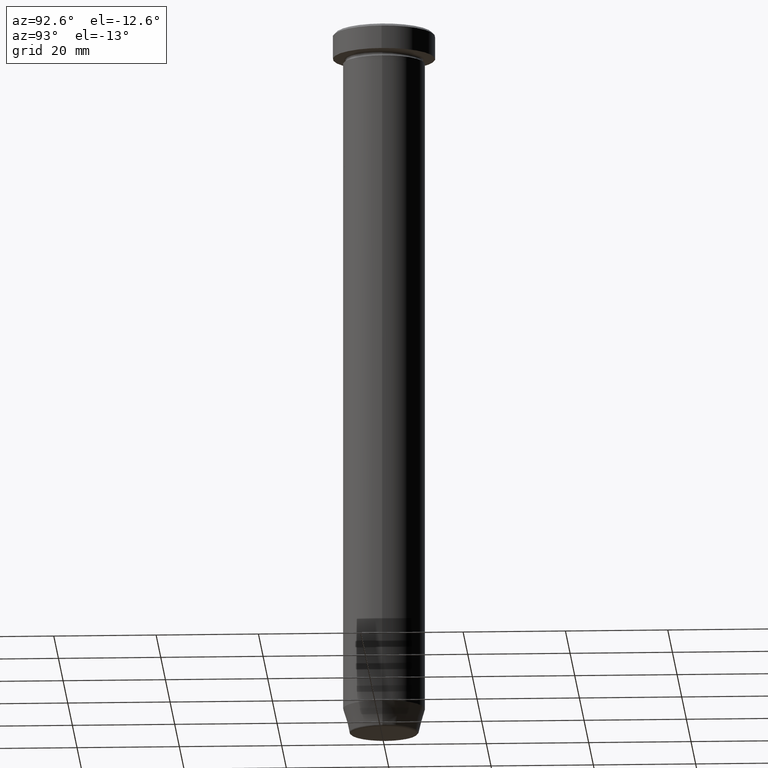
[diagram: clean part render]
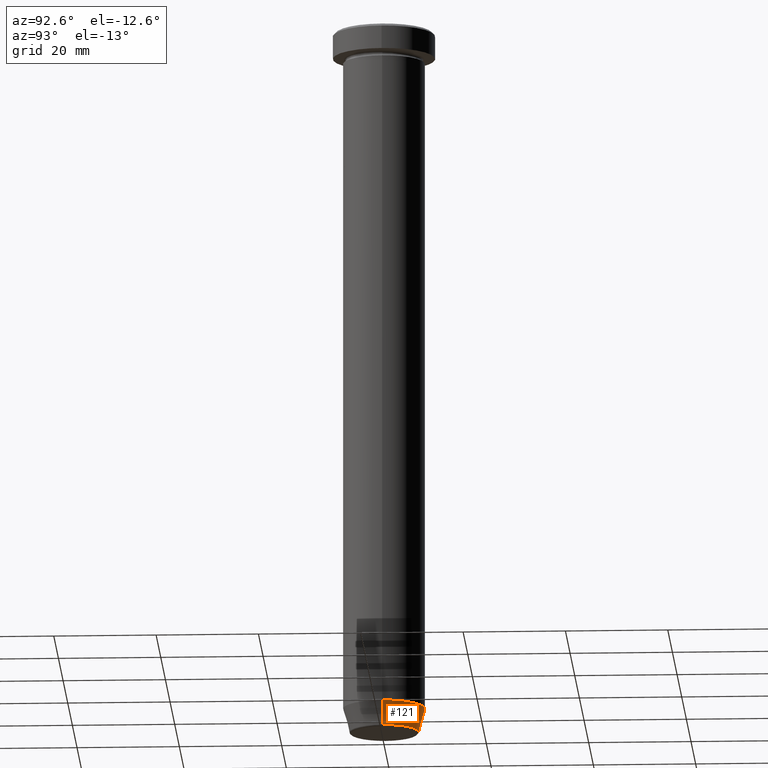
[diagram: same view with one face highlighted and labeled with its STEP entity id]
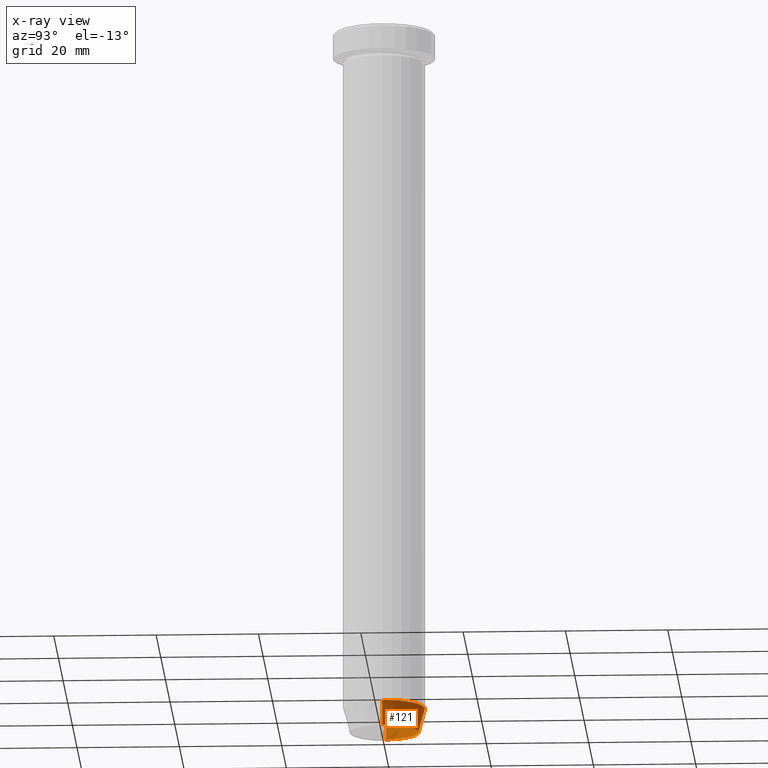
[diagram: x-ray of the same camera — body ghosted, the highlighted face saturated]
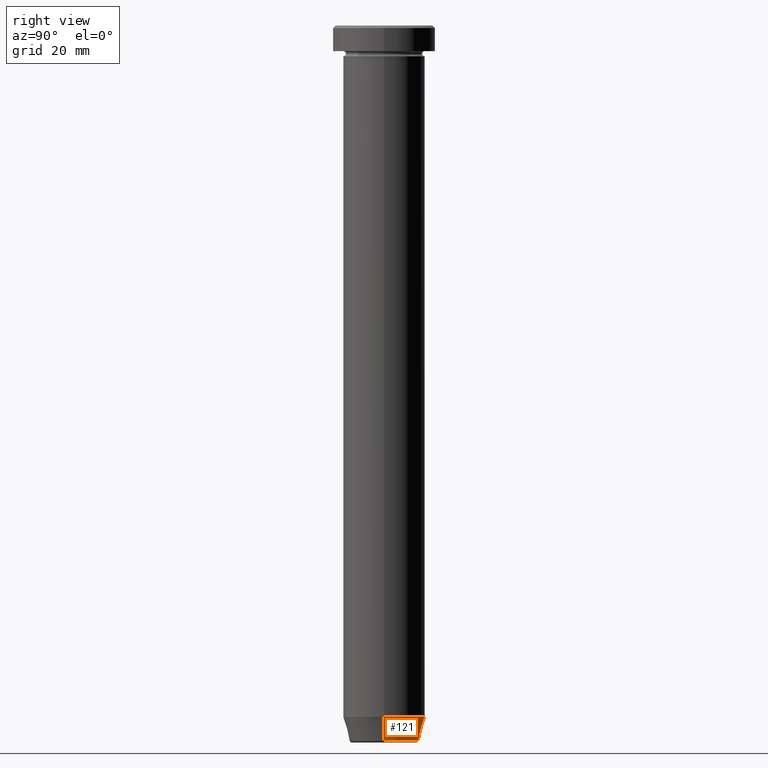
[diagram: same view with one face highlighted and labeled with its STEP entity id]
A machine part, auxiliary view. The second image highlights one B-rep face of the part: STEP entity #121.
The next image is the same camera in x-ray: the body ghosted, the highlighted face saturated — about 0% of this face is hidden behind the body in this view.
A second angle (right view) of the same face is appended — the face is thin or edge-on in the first view.
In plain terms, the highlighted conical surface has half-angle 15 deg.
Its self-contained STEP definition (entity closure, byte-faithful):
#9 = CIRCLE ( 'NONE', #142, 6.759553456999436882 ) ;
#14 = VERTEX_POINT ( 'NONE', #264 ) ;
#22 = DIRECTION ( 'NONE',  ( -0.000000000000000000, -0.000000000000000000, 1.000000000000000000 ) ) ;
#46 = CARTESIAN_POINT ( 'NONE',  ( 8.000000000000000000, 0.000000000000000000, -135.0000000000000000 ) ) ;
#55 = DIRECTION ( 'NONE',  ( -0.000000000000000000, -0.000000000000000000, 1.000000000000000000 ) ) ;
#57 = VERTEX_POINT ( 'NONE', #520 ) ;
#68 = CONICAL_SURFACE ( 'NONE', #530, 6.660254037844382857, 0.2617993877991499074 ) ;
#116 = CIRCLE ( 'NONE', #513, 8.000000000000000000 ) ;
#118 = VERTEX_POINT ( 'NONE', #241 ) ;
#121 = ADVANCED_FACE ( 'NONE', ( #381 ), #68, .T. ) ;
#142 = AXIS2_PLACEMENT_3D ( 'NONE', #446, #22, #442 ) ;
#183 = CARTESIAN_POINT ( 'NONE',  ( 0.000000000000000000, 0.000000000000000000, -140.0000000000000000 ) ) ;
#192 = ORIENTED_EDGE ( 'NONE', *, *, #594, .T. ) ;
#209 = DIRECTION ( 'NONE',  ( 0.2588190451025211836, 0.000000000000000000, 0.9659258262890680902 ) ) ;
#214 = LINE ( 'NONE', #545, #346 ) ;
#228 = CARTESIAN_POINT ( 'NONE',  ( 0.000000000000000000, 0.000000000000000000, -135.0000000000000000 ) ) ;
#241 = CARTESIAN_POINT ( 'NONE',  ( 6.759553456999436882, 0.000000000000000000, -139.6294095225512706 ) ) ;
#247 = EDGE_CURVE ( 'NONE', #57, #14, #393, .T. ) ;
#264 = CARTESIAN_POINT ( 'NONE',  ( -8.000000000000000000, 9.797174393178825657E-16, -135.0000000000000000 ) ) ;
#278 = ORIENTED_EDGE ( 'NONE', *, *, #247, .T. ) ;
#316 = EDGE_CURVE ( 'NONE', #118, #441, #214, .T. ) ;
#317 = ORIENTED_EDGE ( 'NONE', *, *, #443, .F. ) ;
#336 = DIRECTION ( 'NONE',  ( -0.2588190451025211836, 3.169619151431770488E-17, 0.9659258262890680902 ) ) ;
#346 = VECTOR ( 'NONE', #209, 1000.000000000000114 ) ;
#381 = FACE_OUTER_BOUND ( 'NONE', #507, .T. ) ;
#384 = ORIENTED_EDGE ( 'NONE', *, *, #316, .F. ) ;
#393 = LINE ( 'NONE', #574, #570 ) ;
#420 = DIRECTION ( 'NONE',  ( -0.000000000000000000, -0.000000000000000000, 1.000000000000000000 ) ) ;
#441 = VERTEX_POINT ( 'NONE', #46 ) ;
#442 = DIRECTION ( 'NONE',  ( -1.000000000000000000, 0.000000000000000000, 0.000000000000000000 ) ) ;
#443 = EDGE_CURVE ( 'NONE', #441, #14, #116, .T. ) ;
#446 = CARTESIAN_POINT ( 'NONE',  ( 0.000000000000000000, 0.000000000000000000, -139.6294095225512706 ) ) ;
#507 = EDGE_LOOP ( 'NONE', ( #192, #278, #317, #384 ) ) ;
#513 = AXIS2_PLACEMENT_3D ( 'NONE', #228, #420, #598 ) ;
#520 = CARTESIAN_POINT ( 'NONE',  ( -6.759553456999436882, 9.037619948979306213E-16, -139.6294095225512706 ) ) ;
#530 = AXIS2_PLACEMENT_3D ( 'NONE', #183, #55, #566 ) ;
#545 = CARTESIAN_POINT ( 'NONE',  ( 6.660254037844382857, 0.000000000000000000, -140.0000000000000000 ) ) ;
#566 = DIRECTION ( 'NONE',  ( 1.000000000000000000, 0.000000000000000000, 0.000000000000000000 ) ) ;
#570 = VECTOR ( 'NONE', #336, 1000.000000000000114 ) ;
#574 = CARTESIAN_POINT ( 'NONE',  ( -6.660254037844382857, 8.156458788954358790E-16, -140.0000000000000000 ) ) ;
#594 = EDGE_CURVE ( 'NONE', #118, #57, #9, .T. ) ;
#598 = DIRECTION ( 'NONE',  ( 1.000000000000000000, 0.000000000000000000, 0.000000000000000000 ) ) ;